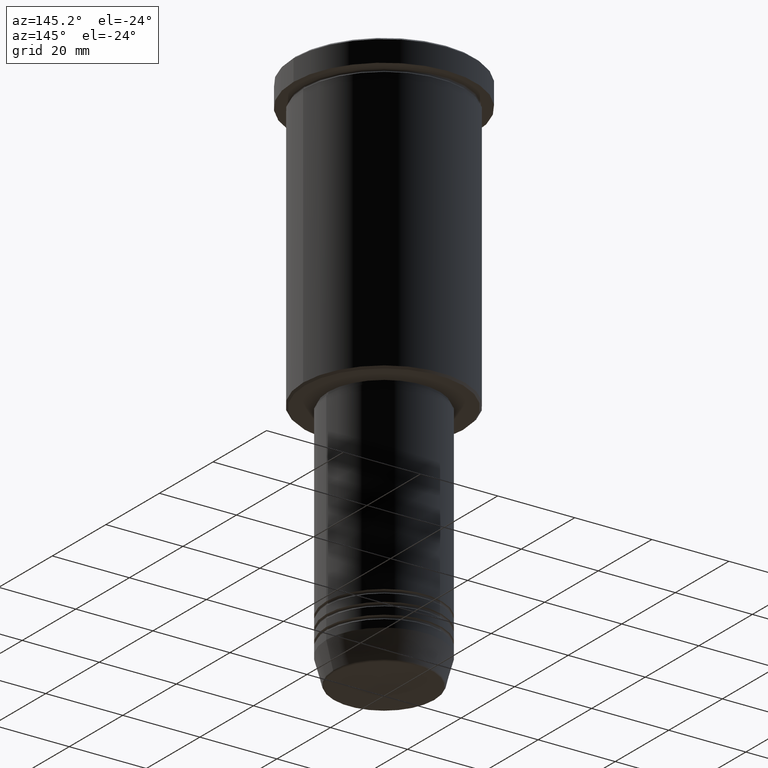
[diagram: clean part render]
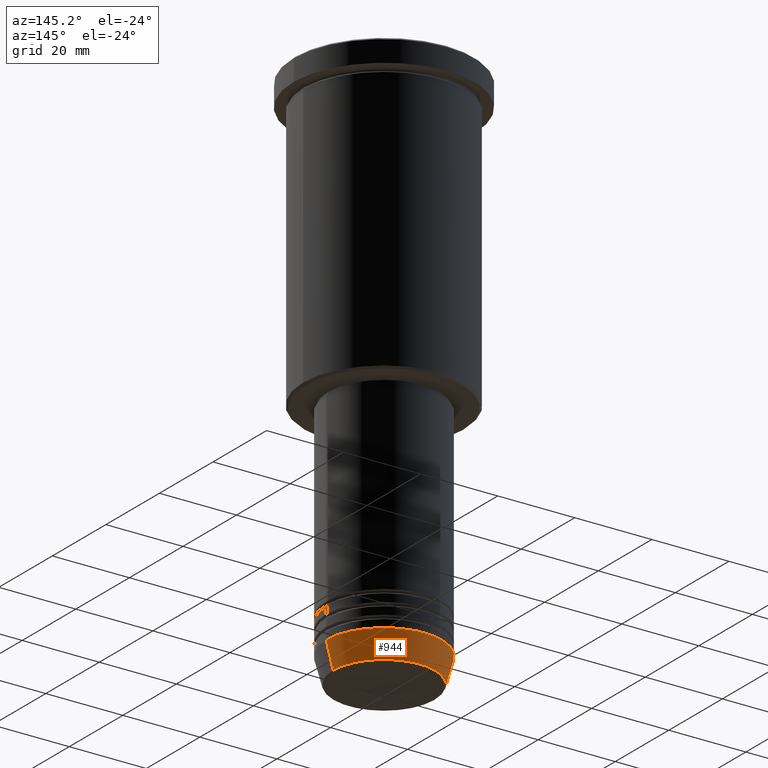
[diagram: same view with one face highlighted and labeled with its STEP entity id]
A machine part, auxiliary view. The second image highlights one B-rep face of the part: STEP entity #944.
In plain terms, the highlighted conical surface has half-angle 15 deg.
Its self-contained STEP definition (entity closure, byte-faithful):
#24 = VERTEX_POINT ( 'NONE', #206 ) ;
#88 = EDGE_CURVE ( 'NONE', #1076, #368, #714, .T. ) ;
#118 = ORIENTED_EDGE ( 'NONE', *, *, #221, .T. ) ;
#155 = AXIS2_PLACEMENT_3D ( 'NONE', #1120, #232, #382 ) ;
#162 = VERTEX_POINT ( 'NONE', #505 ) ;
#206 = CARTESIAN_POINT ( 'NONE',  ( -13.22365507213719660, 1.728200442216588780E-15, -140.6294095225512706 ) ) ;
#221 = EDGE_CURVE ( 'NONE', #24, #368, #475, .T. ) ;
#232 = DIRECTION ( 'NONE',  ( -0.000000000000000000, -0.000000000000000000, 1.000000000000000000 ) ) ;
#246 = DIRECTION ( 'NONE',  ( 1.000000000000000000, 0.000000000000000000, 0.000000000000000000 ) ) ;
#329 = DIRECTION ( 'NONE',  ( 0.2588190451025213501, 0.000000000000000000, 0.9659258262890680902 ) ) ;
#368 = VERTEX_POINT ( 'NONE', #417 ) ;
#374 = CIRCLE ( 'NONE', #155, 13.22365507213719482 ) ;
#382 = DIRECTION ( 'NONE',  ( 1.000000000000000000, 0.000000000000000000, 0.000000000000000000 ) ) ;
#386 = AXIS2_PLACEMENT_3D ( 'NONE', #713, #981, #1087 ) ;
#415 = EDGE_LOOP ( 'NONE', ( #591, #118, #629, #646 ) ) ;
#417 = CARTESIAN_POINT ( 'NONE',  ( -15.00000000000000000, 1.836970198721029589E-15, -134.0000000000000000 ) ) ;
#437 = CARTESIAN_POINT ( 'NONE',  ( 15.00000000000000000, 0.000000000000000000, -134.0000000000000000 ) ) ;
#475 = LINE ( 'NONE', #1101, #1085 ) ;
#505 = CARTESIAN_POINT ( 'NONE',  ( 13.22365507213719482, 0.000000000000000000, -140.6294095225512706 ) ) ;
#522 = VECTOR ( 'NONE', #329, 1000.000000000000000 ) ;
#584 = CARTESIAN_POINT ( 'NONE',  ( 0.000000000000000000, 0.000000000000000000, -134.0000000000000000 ) ) ;
#591 = ORIENTED_EDGE ( 'NONE', *, *, #712, .T. ) ;
#629 = ORIENTED_EDGE ( 'NONE', *, *, #88, .F. ) ;
#639 = DIRECTION ( 'NONE',  ( -0.2588190451025213501, 3.169619151431772337E-17, 0.9659258262890680902 ) ) ;
#646 = ORIENTED_EDGE ( 'NONE', *, *, #929, .F. ) ;
#674 = FACE_OUTER_BOUND ( 'NONE', #415, .T. ) ;
#679 = LINE ( 'NONE', #1050, #522 ) ;
#712 = EDGE_CURVE ( 'NONE', #162, #24, #374, .T. ) ;
#713 = CARTESIAN_POINT ( 'NONE',  ( 0.000000000000000000, 0.000000000000000000, -134.0000000000000000 ) ) ;
#714 = CIRCLE ( 'NONE', #386, 15.00000000000000000 ) ;
#850 = DIRECTION ( 'NONE',  ( -0.000000000000000000, -0.000000000000000000, 1.000000000000000000 ) ) ;
#886 = CONICAL_SURFACE ( 'NONE', #1133, 15.00000000000000000, 0.2617993877991500740 ) ;
#929 = EDGE_CURVE ( 'NONE', #162, #1076, #679, .T. ) ;
#944 = ADVANCED_FACE ( 'NONE', ( #674 ), #886, .T. ) ;
#981 = DIRECTION ( 'NONE',  ( -0.000000000000000000, -0.000000000000000000, 1.000000000000000000 ) ) ;
#1050 = CARTESIAN_POINT ( 'NONE',  ( 15.00000000000000000, 0.000000000000000000, -134.0000000000000000 ) ) ;
#1076 = VERTEX_POINT ( 'NONE', #437 ) ;
#1085 = VECTOR ( 'NONE', #639, 1000.000000000000000 ) ;
#1087 = DIRECTION ( 'NONE',  ( 1.000000000000000000, 0.000000000000000000, 0.000000000000000000 ) ) ;
#1101 = CARTESIAN_POINT ( 'NONE',  ( -15.00000000000000000, 1.836970198721029589E-15, -134.0000000000000000 ) ) ;
#1120 = CARTESIAN_POINT ( 'NONE',  ( 0.000000000000000000, 0.000000000000000000, -140.6294095225512706 ) ) ;
#1133 = AXIS2_PLACEMENT_3D ( 'NONE', #584, #850, #246 ) ;